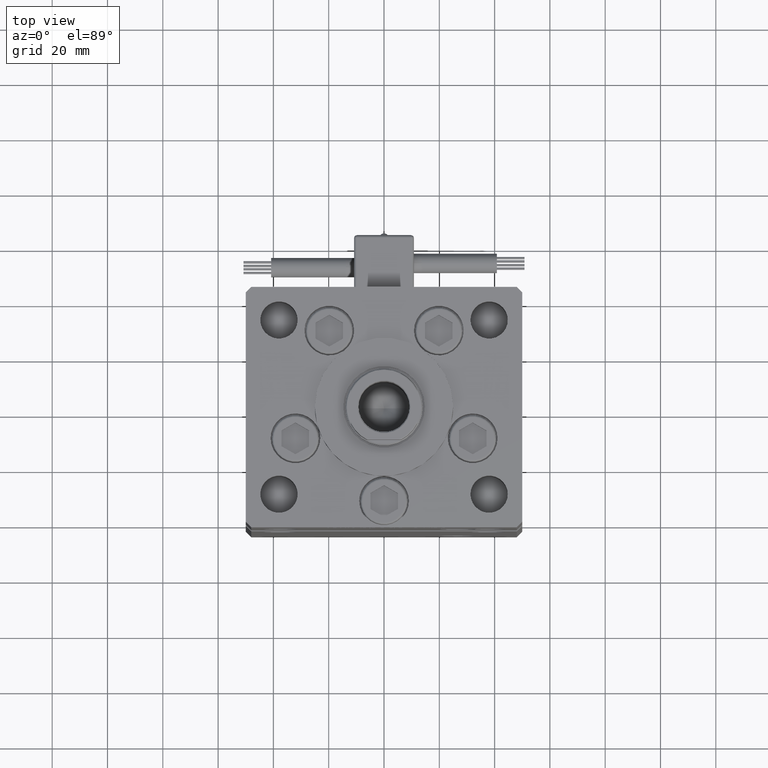
[diagram: clean part render]
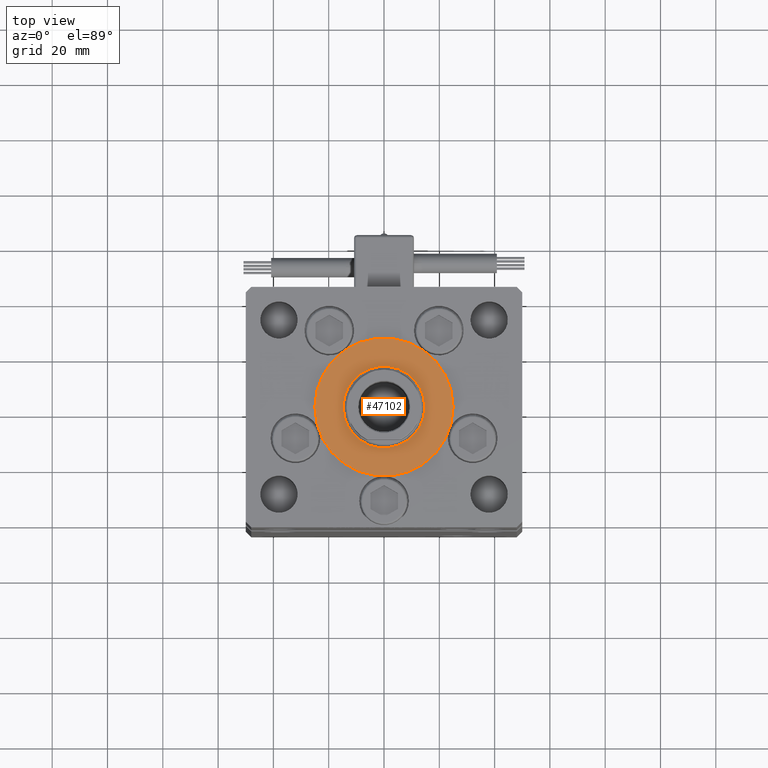
[diagram: same view with one face highlighted and labeled with its STEP entity id]
A machine part, top view. The second image highlights one B-rep face of the part: STEP entity #47102.
In plain terms, the highlighted planar face has unit normal (0, 0, 1).
Its self-contained STEP definition (entity closure, byte-faithful):
#3998 = CIRCLE ( 'NONE', #45873, 14.75000000000000178 ) ;
#4585 = CARTESIAN_POINT ( 'NONE',  ( 0.000000000000000000, -6.938893903907228378E-15, 2.000000000000000000 ) ) ;
#4695 = DIRECTION ( 'NONE',  ( 0.000000000000000000, 0.000000000000000000, 1.000000000000000000 ) ) ;
#6669 = EDGE_LOOP ( 'NONE', ( #41658, #15936 ) ) ;
#6728 = AXIS2_PLACEMENT_3D ( 'NONE', #43745, #4695, #8127 ) ;
#7974 = AXIS2_PLACEMENT_3D ( 'NONE', #29517, #38645, #56324 ) ;
#8001 = DIRECTION ( 'NONE',  ( 0.000000000000000000, 0.000000000000000000, 1.000000000000000000 ) ) ;
#8127 = DIRECTION ( 'NONE',  ( 1.000000000000000000, 0.000000000000000000, 0.000000000000000000 ) ) ;
#9847 = EDGE_CURVE ( 'NONE', #27712, #15020, #31292, .T. ) ;
#11122 = EDGE_LOOP ( 'NONE', ( #49336, #17065 ) ) ;
#11302 = DIRECTION ( 'NONE',  ( 1.000000000000000000, 0.000000000000000000, 0.000000000000000000 ) ) ;
#12424 = FACE_BOUND ( 'NONE', #6669, .T. ) ;
#12536 = CIRCLE ( 'NONE', #27102, 25.00000000000000000 ) ;
#13153 = CIRCLE ( 'NONE', #27697, 14.75000000000000178 ) ;
#15020 = VERTEX_POINT ( 'NONE', #44950 ) ;
#15060 = EDGE_CURVE ( 'NONE', #40901, #43746, #13153, .T. ) ;
#15936 = ORIENTED_EDGE ( 'NONE', *, *, #15060, .F. ) ;
#17065 = ORIENTED_EDGE ( 'NONE', *, *, #33226, .T. ) ;
#18726 = CARTESIAN_POINT ( 'NONE',  ( -25.00000000000000000, -6.938893903907228378E-15, 2.000000000000000000 ) ) ;
#20861 = EDGE_CURVE ( 'NONE', #43746, #40901, #3998, .T. ) ;
#27102 = AXIS2_PLACEMENT_3D ( 'NONE', #4585, #31074, #48475 ) ;
#27697 = AXIS2_PLACEMENT_3D ( 'NONE', #45234, #32103, #11302 ) ;
#27712 = VERTEX_POINT ( 'NONE', #18726 ) ;
#29517 = CARTESIAN_POINT ( 'NONE',  ( 0.000000000000000000, -6.938893903907228378E-15, 2.000000000000000000 ) ) ;
#30368 = FACE_OUTER_BOUND ( 'NONE', #11122, .T. ) ;
#31074 = DIRECTION ( 'NONE',  ( 0.000000000000000000, 0.000000000000000000, 1.000000000000000000 ) ) ;
#31292 = CIRCLE ( 'NONE', #6728, 25.00000000000000000 ) ;
#32103 = DIRECTION ( 'NONE',  ( 0.000000000000000000, 0.000000000000000000, 1.000000000000000000 ) ) ;
#32578 = CARTESIAN_POINT ( 'NONE',  ( 14.75000000000000178, -6.938893903907228378E-15, 2.000000000000000000 ) ) ;
#33226 = EDGE_CURVE ( 'NONE', #15020, #27712, #12536, .T. ) ;
#38075 = PLANE ( 'NONE',  #7974 ) ;
#38645 = DIRECTION ( 'NONE',  ( 0.000000000000000000, 0.000000000000000000, 1.000000000000000000 ) ) ;
#40901 = VERTEX_POINT ( 'NONE', #42874 ) ;
#41658 = ORIENTED_EDGE ( 'NONE', *, *, #20861, .F. ) ;
#42874 = CARTESIAN_POINT ( 'NONE',  ( -14.75000000000000178, -5.132539875164881787E-15, 2.000000000000000000 ) ) ;
#43745 = CARTESIAN_POINT ( 'NONE',  ( 0.000000000000000000, -6.938893903907228378E-15, 2.000000000000000000 ) ) ;
#43746 = VERTEX_POINT ( 'NONE', #32578 ) ;
#44950 = CARTESIAN_POINT ( 'NONE',  ( 25.00000000000000000, -3.877276906038844941E-15, 2.000000000000000000 ) ) ;
#45234 = CARTESIAN_POINT ( 'NONE',  ( 0.000000000000000000, -6.938893903907228378E-15, 2.000000000000000000 ) ) ;
#45873 = AXIS2_PLACEMENT_3D ( 'NONE', #47038, #8001, #55874 ) ;
#47038 = CARTESIAN_POINT ( 'NONE',  ( 0.000000000000000000, -6.938893903907228378E-15, 2.000000000000000000 ) ) ;
#47102 = ADVANCED_FACE ( 'NONE', ( #12424, #30368 ), #38075, .T. ) ;
#48475 = DIRECTION ( 'NONE',  ( 1.000000000000000000, 0.000000000000000000, 0.000000000000000000 ) ) ;
#49336 = ORIENTED_EDGE ( 'NONE', *, *, #9847, .T. ) ;
#55874 = DIRECTION ( 'NONE',  ( 1.000000000000000000, 0.000000000000000000, 0.000000000000000000 ) ) ;
#56324 = DIRECTION ( 'NONE',  ( 1.000000000000000000, 0.000000000000000000, -0.000000000000000000 ) ) ;